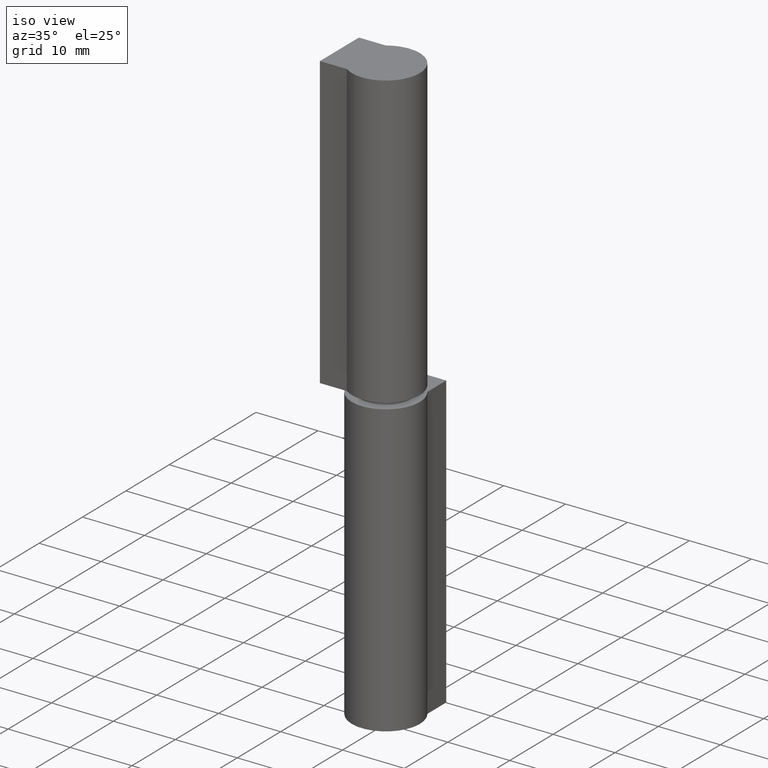
[diagram: clean part render]
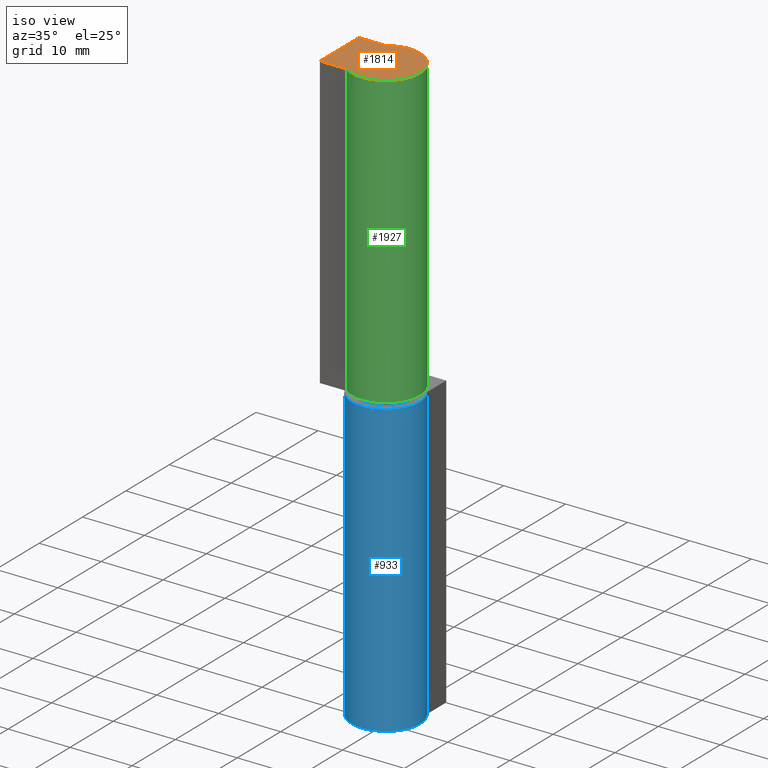
[diagram: same view with three faces highlighted in distinct colors, each labeled with its STEP entity id]
A machine part, iso view with three faces highlighted in distinct colors.
Their STEP definitions:

[orange] entity #1814 — the highlighted face is a freeform B-spline surface patch.
#1767=CARTESIAN_POINT('',(-8.149350483911544,6.049422232287681,95.000004512256695));
#1768=CARTESIAN_POINT('',(6.149350621374540,6.049422232287681,95.000004512256695));
#1769=CARTESIAN_POINT('',(-8.149350483911544,-6.049422002597760,95.000004512256695));
#1770=CARTESIAN_POINT('',(6.149350621374540,-6.049422002597760,95.000004512256695));
#1771=B_SPLINE_SURFACE_WITH_KNOTS('',1,1,((#1767,#1769),(#1768,#1770)),.UNSPECIFIED.,.F.,.F.,.U.,(2,2),(2,2),(0.0,14.298701105286090),(0.0,12.098844234885441),.UNSPECIFIED.);
#1772=CARTESIAN_POINT('',(-7.500000356230901,4.500000213738470,95.000004512256695));
#1773=VERTEX_POINT('',#1772);
#1774=CARTESIAN_POINT('',(-3.162277810368360,4.500000213738639,95.000004512256695));
#1775=VERTEX_POINT('',#1774);
#1776=CARTESIAN_POINT('',(-7.500000356230901,4.500000213738470,95.000004512256695));
#1777=CARTESIAN_POINT('',(-3.162277810368360,4.500000213738639,95.000004512256695));
#1778=QUASI_UNIFORM_CURVE('',1,(#1776,#1777),.UNSPECIFIED.,.F.,.U.);
#1779=EDGE_CURVE('',#1773,#1775,#1778,.T.);
#1780=ORIENTED_EDGE('',*,*,#1779,.F.);
#1781=CARTESIAN_POINT('',(-7.500000356230901,-4.500000213738530,95.000004512256695));
#1782=VERTEX_POINT('',#1781);
#1783=CARTESIAN_POINT('',(-7.500000356230901,-4.500000213738530,95.000004512256695));
#1784=CARTESIAN_POINT('',(-7.500000356230901,4.500000213738470,95.000004512256695));
#1785=QUASI_UNIFORM_CURVE('',1,(#1783,#1784),.UNSPECIFIED.,.F.,.U.);
#1786=EDGE_CURVE('',#1782,#1773,#1785,.T.);
#1787=ORIENTED_EDGE('',*,*,#1786,.F.);
#1788=CARTESIAN_POINT('',(-3.162277810368365,-4.500000213738630,95.000004512256695));
#1789=VERTEX_POINT('',#1788);
#1790=CARTESIAN_POINT('',(-3.162277810368365,-4.500000213738630,95.000004512256695));
#1791=CARTESIAN_POINT('',(-7.500000356230901,-4.500000213738530,95.000004512256695));
#1792=QUASI_UNIFORM_CURVE('',1,(#1790,#1791),.UNSPECIFIED.,.F.,.U.);
#1793=EDGE_CURVE('',#1789,#1782,#1792,.T.);
#1794=ORIENTED_EDGE('',*,*,#1793,.F.);
#1795=CARTESIAN_POINT('',(-3.162277810368365,-4.500000213738629,95.000004512256695));
#1796=CARTESIAN_POINT('',(0.846925911101343,-7.317381405620125,95.000004512256680));
#1797=CARTESIAN_POINT('',(4.106578285478924,-3.658690702810069,95.000004512256695));
#1798=CARTESIAN_POINT('',(7.366230659856508,-9.540979E-015,95.000004512256680));
#1799=CARTESIAN_POINT('',(4.106578285478934,3.658690702810059,95.000004512256695));
#1800=CARTESIAN_POINT('',(0.846925911101360,7.317381405620125,95.000004512256680));
#1801=CARTESIAN_POINT('',(-3.162277810368356,4.500000213738635,95.000004512256695));
#1809=(BOUNDED_CURVE()B_SPLINE_CURVE(2,(#1795,#1796,#1797,#1798,#1799,#1800,#1801),.UNSPECIFIED.,.F.,.U.)B_SPLINE_CURVE_WITH_KNOTS((3,2,2,3),(0.0,0.333333333333333,0.666666666666667,1.0),.UNSPECIFIED.)CURVE()GEOMETRIC_REPRESENTATION_ITEM()RATIONAL_B_SPLINE_CURVE((1.0,0.746650561895807,1.0,0.746650561895807,1.0,0.746650561895807,1.0))REPRESENTATION_ITEM(''));
#1810=EDGE_CURVE('',#1789,#1775,#1809,.T.);
#1811=ORIENTED_EDGE('',*,*,#1810,.T.);
#1812=EDGE_LOOP('',(#1780,#1787,#1794,#1811));
#1813=FACE_OUTER_BOUND('',#1812,.T.);
#1814=ADVANCED_FACE('',(#1813),#1771,.F.);

[blue] entity #933 — the highlighted face is a freeform B-spline surface patch.
#814=CARTESIAN_POINT('',(4.500000213738620,3.162277810368375,0.0));
#815=VERTEX_POINT('',#814);
#821=CARTESIAN_POINT('',(-4.500000213738630,3.162277810368375,0.0));
#822=VERTEX_POINT('',#821);
#823=CARTESIAN_POINT('',(4.500000213738621,3.162277810368379,0.0));
#824=CARTESIAN_POINT('',(7.317381405620135,-0.846925911101332,0.0));
#825=CARTESIAN_POINT('',(3.658690702810069,-4.106578285478923,0.0));
#826=CARTESIAN_POINT('',(5.204170E-015,-7.366230659856512,0.0));
#827=CARTESIAN_POINT('',(-3.658690702810063,-4.106578285478929,0.0));
#828=CARTESIAN_POINT('',(-7.317381405620135,-0.846925911101343,0.0));
#829=CARTESIAN_POINT('',(-4.500000213738625,3.162277810368372,0.0));
#837=(BOUNDED_CURVE()B_SPLINE_CURVE(2,(#823,#824,#825,#826,#827,#828,#829),.UNSPECIFIED.,.F.,.U.)B_SPLINE_CURVE_WITH_KNOTS((3,2,2,3),(0.0,0.333333333333333,0.666666666666667,1.0),.UNSPECIFIED.)CURVE()GEOMETRIC_REPRESENTATION_ITEM()RATIONAL_B_SPLINE_CURVE((1.0,0.746650561895806,1.0,0.746650561895806,1.0,0.746650561895806,1.0))REPRESENTATION_ITEM(''));
#838=EDGE_CURVE('',#815,#822,#837,.T.);
#861=CARTESIAN_POINT('',(-4.500000213738630,3.162277810368375,47.000002232378897));
#862=VERTEX_POINT('',#861);
#863=CARTESIAN_POINT('',(-4.500000213738630,3.162277810368375,47.000002232378897));
#864=CARTESIAN_POINT('',(-4.500000213738630,3.162277810368375,0.0));
#865=QUASI_UNIFORM_CURVE('',1,(#863,#864),.UNSPECIFIED.,.F.,.U.);
#866=EDGE_CURVE('',#862,#822,#865,.T.);
#883=CARTESIAN_POINT('',(-4.369094112764977,3.340811204991722,48.175002288188367));
#884=CARTESIAN_POINT('',(-4.369094112764977,3.340811204991722,-1.204375057204715));
#885=CARTESIAN_POINT('',(-7.466331391542243,-0.709738296375719,48.175002288188367));
#886=CARTESIAN_POINT('',(-7.466331391542243,-0.709738296375719,-1.204375057204715));
#887=CARTESIAN_POINT('',(-3.661384714087546,-4.104176512900228,48.175002288188367));
#888=CARTESIAN_POINT('',(-3.661384714087546,-4.104176512900228,-1.204375057204715));
#889=CARTESIAN_POINT('',(0.143561963367151,-7.498614729424736,48.175002288188367));
#890=CARTESIAN_POINT('',(0.143561963367151,-7.498614729424736,-1.204375057204715));
#891=CARTESIAN_POINT('',(3.815794054726677,-3.961024943812947,48.175002288188367));
#892=CARTESIAN_POINT('',(3.815794054726677,-3.961024943812947,-1.204375057204715));
#893=CARTESIAN_POINT('',(7.488026146086201,-0.423435158201157,48.175002288188367));
#894=CARTESIAN_POINT('',(7.488026146086201,-0.423435158201157,-1.204375057204715));
#895=CARTESIAN_POINT('',(4.238018757437076,3.505595510780915,48.175002288188367));
#896=CARTESIAN_POINT('',(4.238018757437076,3.505595510780915,-1.204375057204715));
#904=(BOUNDED_SURFACE()B_SPLINE_SURFACE(1,2,((#883,#885,#887,#889,#891,#893,#895),(#884,#886,#888,#890,#892,#894,#896)),.UNSPECIFIED.,.F.,.F.,.U.)B_SPLINE_SURFACE_WITH_KNOTS((2,2),(3,2,2,3),(0.0,49.379377345393102),(0.0,8.629089370508998,17.258178741018000,25.887268111526989),.UNSPECIFIED.)GEOMETRIC_REPRESENTATION_ITEM()RATIONAL_B_SPLINE_SURFACE(((1.0,0.733334457426899,1.0,0.733334457426899,1.0,0.733334457426899,1.0),(1.0,0.733334457426899,1.0,0.733334457426899,1.0,0.733334457426899,1.0)))REPRESENTATION_ITEM('')SURFACE());
#905=ORIENTED_EDGE('',*,*,#838,.F.);
#906=CARTESIAN_POINT('',(4.500000213738620,3.162277810368375,47.000002232378897));
#907=VERTEX_POINT('',#906);
#908=CARTESIAN_POINT('',(4.500000213738620,3.162277810368375,47.000002232378897));
#909=CARTESIAN_POINT('',(4.500000213738620,3.162277810368375,0.0));
#910=QUASI_UNIFORM_CURVE('',1,(#908,#909),.UNSPECIFIED.,.F.,.U.);
#911=EDGE_CURVE('',#907,#815,#910,.T.);
#912=ORIENTED_EDGE('',*,*,#911,.F.);
#913=CARTESIAN_POINT('',(4.500000213738621,3.162277810368379,47.000002232378897));
#914=CARTESIAN_POINT('',(7.317381405620135,-0.846925911101332,47.000002232378876));
#915=CARTESIAN_POINT('',(3.658690702810069,-4.106578285478923,47.000002232378897));
#916=CARTESIAN_POINT('',(5.204170E-015,-7.366230659856512,47.000002232378876));
#917=CARTESIAN_POINT('',(-3.658690702810063,-4.106578285478929,47.000002232378897));
#918=CARTESIAN_POINT('',(-7.317381405620135,-0.846925911101343,47.000002232378876));
#919=CARTESIAN_POINT('',(-4.500000213738625,3.162277810368372,47.000002232378897));
#927=(BOUNDED_CURVE()B_SPLINE_CURVE(2,(#913,#914,#915,#916,#917,#918,#919),.UNSPECIFIED.,.F.,.U.)B_SPLINE_CURVE_WITH_KNOTS((3,2,2,3),(0.0,0.333333333333333,0.666666666666667,1.0),.UNSPECIFIED.)CURVE()GEOMETRIC_REPRESENTATION_ITEM()RATIONAL_B_SPLINE_CURVE((1.0,0.746650561895806,1.0,0.746650561895806,1.0,0.746650561895806,1.0))REPRESENTATION_ITEM(''));
#928=EDGE_CURVE('',#907,#862,#927,.T.);
#929=ORIENTED_EDGE('',*,*,#928,.T.);
#930=ORIENTED_EDGE('',*,*,#866,.T.);
#931=EDGE_LOOP('',(#905,#912,#929,#930));
#932=FACE_OUTER_BOUND('',#931,.T.);
#933=ADVANCED_FACE('',(#932),#904,.T.);

[green] entity #1927 — the highlighted face is a freeform B-spline surface patch.
#1774=CARTESIAN_POINT('',(-3.162277810368360,4.500000213738639,95.000004512256695));
#1775=VERTEX_POINT('',#1774);
#1788=CARTESIAN_POINT('',(-3.162277810368365,-4.500000213738630,95.000004512256695));
#1789=VERTEX_POINT('',#1788);
#1795=CARTESIAN_POINT('',(-3.162277810368365,-4.500000213738629,95.000004512256695));
#1796=CARTESIAN_POINT('',(0.846925911101343,-7.317381405620125,95.000004512256680));
#1797=CARTESIAN_POINT('',(4.106578285478924,-3.658690702810069,95.000004512256695));
#1798=CARTESIAN_POINT('',(7.366230659856508,-9.540979E-015,95.000004512256680));
#1799=CARTESIAN_POINT('',(4.106578285478934,3.658690702810059,95.000004512256695));
#1800=CARTESIAN_POINT('',(0.846925911101360,7.317381405620125,95.000004512256680));
#1801=CARTESIAN_POINT('',(-3.162277810368356,4.500000213738635,95.000004512256695));
#1809=(BOUNDED_CURVE()B_SPLINE_CURVE(2,(#1795,#1796,#1797,#1798,#1799,#1800,#1801),.UNSPECIFIED.,.F.,.U.)B_SPLINE_CURVE_WITH_KNOTS((3,2,2,3),(0.0,0.333333333333333,0.666666666666667,1.0),.UNSPECIFIED.)CURVE()GEOMETRIC_REPRESENTATION_ITEM()RATIONAL_B_SPLINE_CURVE((1.0,0.746650561895807,1.0,0.746650561895807,1.0,0.746650561895807,1.0))REPRESENTATION_ITEM(''));
#1810=EDGE_CURVE('',#1789,#1775,#1809,.T.);
#1862=CARTESIAN_POINT('',(-3.162277810368365,-4.500000213738630,48.000002279877712));
#1863=VERTEX_POINT('',#1862);
#1869=CARTESIAN_POINT('',(-3.162277810368365,-4.500000213738630,48.000002279877712));
#1870=CARTESIAN_POINT('',(-3.162277810368365,-4.500000213738630,95.000004512256695));
#1871=QUASI_UNIFORM_CURVE('',1,(#1869,#1870),.UNSPECIFIED.,.F.,.U.);
#1872=EDGE_CURVE('',#1863,#1789,#1871,.T.);
#1877=CARTESIAN_POINT('',(-3.340811204991733,4.369094112764969,46.825002224068221));
#1878=CARTESIAN_POINT('',(-3.340811204991733,4.369094112764969,96.204379569461409));
#1879=CARTESIAN_POINT('',(0.709738296375700,7.466331391542245,46.825002224068221));
#1880=CARTESIAN_POINT('',(0.709738296375700,7.466331391542245,96.204379569461409));
#1881=CARTESIAN_POINT('',(4.104176512900218,3.661384714087557,46.825002224068221));
#1882=CARTESIAN_POINT('',(4.104176512900218,3.661384714087557,96.204379569461409));
#1883=CARTESIAN_POINT('',(7.498614729424736,-0.143561963367132,46.825002224068221));
#1884=CARTESIAN_POINT('',(7.498614729424736,-0.143561963367132,96.204379569461409));
#1885=CARTESIAN_POINT('',(3.961024943812956,-3.815794054726667,46.825002224068221));
#1886=CARTESIAN_POINT('',(3.961024943812956,-3.815794054726667,96.204379569461409));
#1887=CARTESIAN_POINT('',(0.423435158201176,-7.488026146086201,46.825002224068221));
#1888=CARTESIAN_POINT('',(0.423435158201176,-7.488026146086201,96.204379569461409));
#1889=CARTESIAN_POINT('',(-3.505595510780905,-4.238018757437085,46.825002224068221));
#1890=CARTESIAN_POINT('',(-3.505595510780905,-4.238018757437085,96.204379569461409));
#1898=(BOUNDED_SURFACE()B_SPLINE_SURFACE(1,2,((#1877,#1879,#1881,#1883,#1885,#1887,#1889),(#1878,#1880,#1882,#1884,#1886,#1888,#1890)),.UNSPECIFIED.,.F.,.F.,.U.)B_SPLINE_SURFACE_WITH_KNOTS((2,2),(3,2,2,3),(0.0,49.379377345393202),(0.0,8.629089370508998,17.258178741018000,25.887268111526989),.UNSPECIFIED.)GEOMETRIC_REPRESENTATION_ITEM()RATIONAL_B_SPLINE_SURFACE(((1.0,0.733334457426899,1.0,0.733334457426899,1.0,0.733334457426899,1.0),(1.0,0.733334457426899,1.0,0.733334457426899,1.0,0.733334457426899,1.0)))REPRESENTATION_ITEM('')SURFACE());
#1899=ORIENTED_EDGE('',*,*,#1810,.F.);
#1900=ORIENTED_EDGE('',*,*,#1872,.F.);
#1901=CARTESIAN_POINT('',(-3.162277810368360,4.500000213738639,48.000002279877712));
#1902=VERTEX_POINT('',#1901);
#1903=CARTESIAN_POINT('',(-3.162277810368365,-4.500000213738629,48.000002279877712));
#1904=CARTESIAN_POINT('',(0.846925911101343,-7.317381405620125,48.000002279877712));
#1905=CARTESIAN_POINT('',(4.106578285478924,-3.658690702810069,48.000002279877712));
#1906=CARTESIAN_POINT('',(7.366230659856508,-9.540979E-015,48.000002279877712));
#1907=CARTESIAN_POINT('',(4.106578285478934,3.658690702810059,48.000002279877712));
#1908=CARTESIAN_POINT('',(0.846925911101360,7.317381405620125,48.000002279877712));
#1909=CARTESIAN_POINT('',(-3.162277810368356,4.500000213738635,48.000002279877712));
#1917=(BOUNDED_CURVE()B_SPLINE_CURVE(2,(#1903,#1904,#1905,#1906,#1907,#1908,#1909),.UNSPECIFIED.,.F.,.U.)B_SPLINE_CURVE_WITH_KNOTS((3,2,2,3),(0.0,0.333333333333333,0.666666666666667,1.0),.UNSPECIFIED.)CURVE()GEOMETRIC_REPRESENTATION_ITEM()RATIONAL_B_SPLINE_CURVE((1.0,0.746650561895807,1.0,0.746650561895807,1.0,0.746650561895807,1.0))REPRESENTATION_ITEM(''));
#1918=EDGE_CURVE('',#1863,#1902,#1917,.T.);
#1919=ORIENTED_EDGE('',*,*,#1918,.T.);
#1920=CARTESIAN_POINT('',(-3.162277810368360,4.500000213738639,48.000002279877712));
#1921=CARTESIAN_POINT('',(-3.162277810368360,4.500000213738639,95.000004512256695));
#1922=QUASI_UNIFORM_CURVE('',1,(#1920,#1921),.UNSPECIFIED.,.F.,.U.);
#1923=EDGE_CURVE('',#1902,#1775,#1922,.T.);
#1924=ORIENTED_EDGE('',*,*,#1923,.T.);
#1925=EDGE_LOOP('',(#1899,#1900,#1919,#1924));
#1926=FACE_OUTER_BOUND('',#1925,.T.);
#1927=ADVANCED_FACE('',(#1926),#1898,.T.);